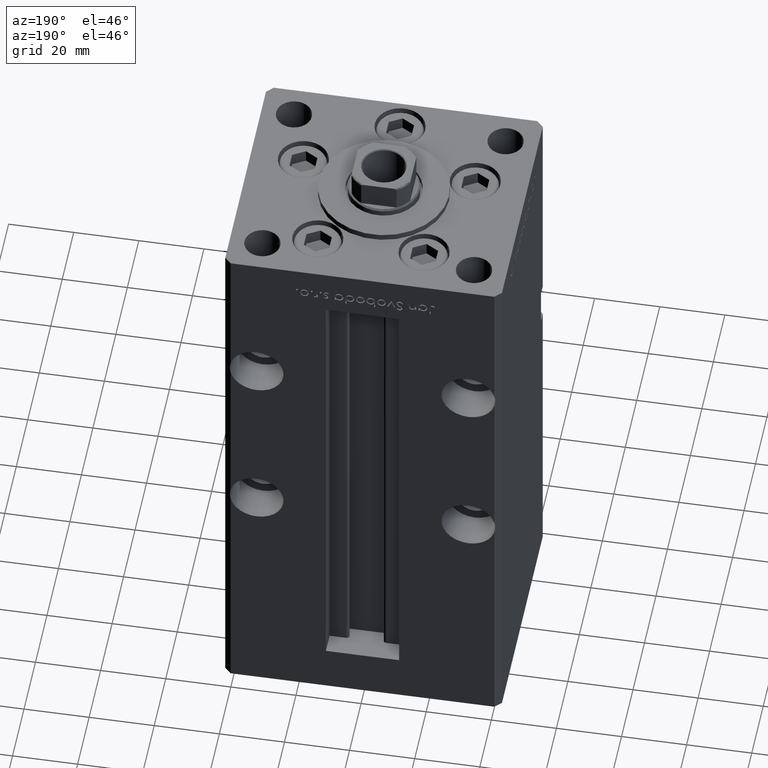
[diagram: clean part render]
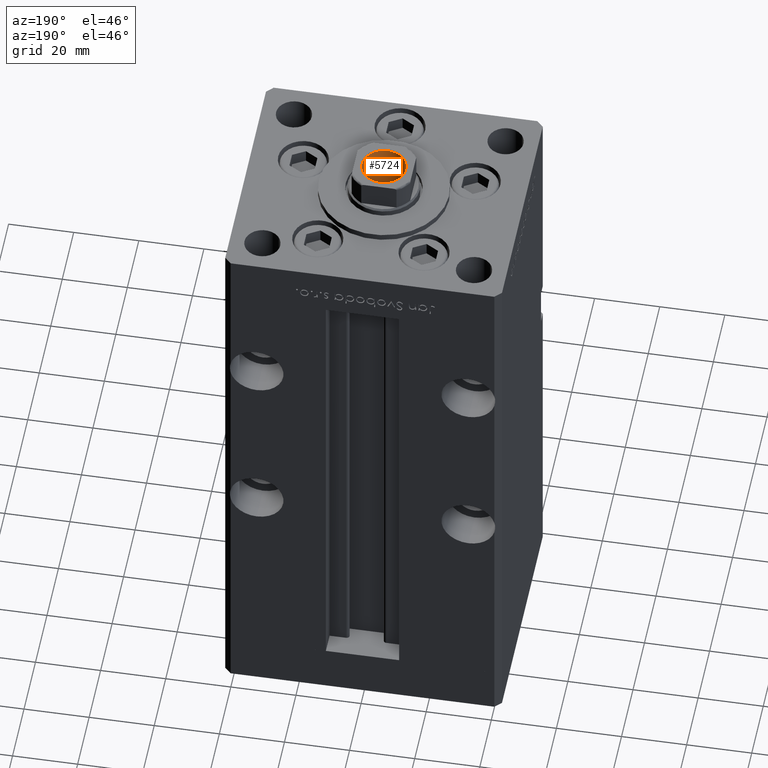
[diagram: same view with one face highlighted and labeled with its STEP entity id]
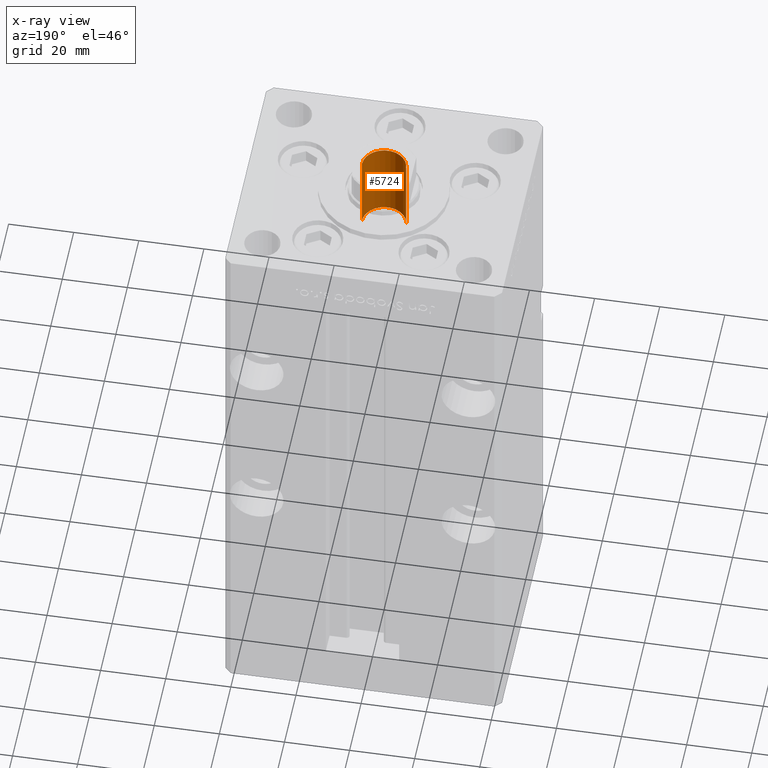
[diagram: x-ray of the same camera — body ghosted, the highlighted face saturated]
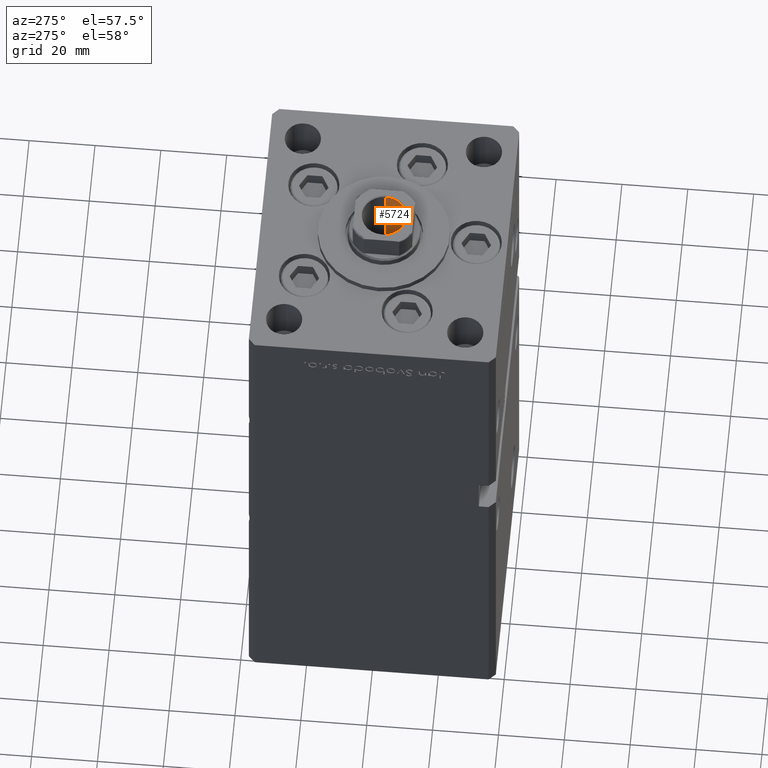
[diagram: same view with one face highlighted and labeled with its STEP entity id]
A machine part, auxiliary view. The second image highlights one B-rep face of the part: STEP entity #5724.
The next image is the same camera in x-ray: the body ghosted, the highlighted face saturated — about 0% of this face is hidden behind the body in this view.
A second angle (auxiliary view) of the same face is appended — the face is thin or edge-on in the first view.
In plain terms, the highlighted cylindrical surface (edge-blend (fillet) strip) has radius 6.75 mm, axis along (0, 0, 1).
Its self-contained STEP definition (entity closure, byte-faithful):
#108 = CARTESIAN_POINT ( 'NONE',  ( 6.749999999999995559, 0.000000000000000000, 155.7500000000000000 ) ) ;
#1410 = VECTOR ( 'NONE', #8171, 1000.000000000000000 ) ;
#4878 = DIRECTION ( 'NONE',  ( -0.000000000000000000, -0.000000000000000000, 1.000000000000000000 ) ) ;
#4901 = DIRECTION ( 'NONE',  ( 1.000000000000000000, 0.000000000000000000, 0.000000000000000000 ) ) ;
#5320 = CIRCLE ( 'NONE', #48295, 6.749999999999995559 ) ;
#5724 = ADVANCED_FACE ( 'NONE', ( #26120 ), #18040, .F. ) ;
#7783 = EDGE_CURVE ( 'NONE', #26233, #46798, #17650, .T. ) ;
#8171 = DIRECTION ( 'NONE',  ( -0.000000000000000000, -0.000000000000000000, 1.000000000000000000 ) ) ;
#9322 = VECTOR ( 'NONE', #17574, 1000.000000000000000 ) ;
#9667 = VERTEX_POINT ( 'NONE', #35859 ) ;
#16768 = LINE ( 'NONE', #108, #1410 ) ;
#17472 = EDGE_CURVE ( 'NONE', #26233, #9667, #49886, .T. ) ;
#17574 = DIRECTION ( 'NONE',  ( -0.000000000000000000, -0.000000000000000000, 1.000000000000000000 ) ) ;
#17650 = CIRCLE ( 'NONE', #43411, 6.749999999999993783 ) ;
#18040 = CYLINDRICAL_SURFACE ( 'NONE', #36503, 6.749999999999995559 ) ;
#23460 = CARTESIAN_POINT ( 'NONE',  ( 0.000000000000000000, 0.000000000000000000, 155.4499999999999886 ) ) ;
#23965 = CARTESIAN_POINT ( 'NONE',  ( 6.749999999999995559, 0.000000000000000000, 155.4499999999999886 ) ) ;
#26095 = ORIENTED_EDGE ( 'NONE', *, *, #7783, .F. ) ;
#26120 = FACE_OUTER_BOUND ( 'NONE', #49809, .T. ) ;
#26233 = VERTEX_POINT ( 'NONE', #51213 ) ;
#26555 = VERTEX_POINT ( 'NONE', #23965 ) ;
#30410 = DIRECTION ( 'NONE',  ( 1.000000000000000000, 0.000000000000000000, 0.000000000000000000 ) ) ;
#34201 = CARTESIAN_POINT ( 'NONE',  ( 0.000000000000000000, 0.000000000000000000, 130.7500000000000000 ) ) ;
#34546 = EDGE_CURVE ( 'NONE', #9667, #26555, #5320, .T. ) ;
#35545 = DIRECTION ( 'NONE',  ( 0.000000000000000000, 0.000000000000000000, 1.000000000000000000 ) ) ;
#35859 = CARTESIAN_POINT ( 'NONE',  ( -6.749999999999995559, 8.266365894244628417E-16, 155.4499999999999886 ) ) ;
#36503 = AXIS2_PLACEMENT_3D ( 'NONE', #50862, #4878, #30410 ) ;
#37486 = CARTESIAN_POINT ( 'NONE',  ( -6.749999999999995559, 8.266365894244628417E-16, 155.7500000000000000 ) ) ;
#40882 = ORIENTED_EDGE ( 'NONE', *, *, #17472, .T. ) ;
#43411 = AXIS2_PLACEMENT_3D ( 'NONE', #34201, #50627, #4901 ) ;
#45806 = EDGE_CURVE ( 'NONE', #46798, #26555, #16768, .T. ) ;
#46218 = CARTESIAN_POINT ( 'NONE',  ( 6.749999999999993783, 0.000000000000000000, 130.7500000000000000 ) ) ;
#46798 = VERTEX_POINT ( 'NONE', #46218 ) ;
#47147 = DIRECTION ( 'NONE',  ( 1.000000000000000000, 0.000000000000000000, 0.000000000000000000 ) ) ;
#48192 = ORIENTED_EDGE ( 'NONE', *, *, #34546, .T. ) ;
#48295 = AXIS2_PLACEMENT_3D ( 'NONE', #23460, #35545, #47147 ) ;
#49809 = EDGE_LOOP ( 'NONE', ( #26095, #40882, #48192, #51622 ) ) ;
#49886 = LINE ( 'NONE', #37486, #9322 ) ;
#50627 = DIRECTION ( 'NONE',  ( -0.000000000000000000, -0.000000000000000000, 1.000000000000000000 ) ) ;
#50862 = CARTESIAN_POINT ( 'NONE',  ( 0.000000000000000000, 0.000000000000000000, 155.7500000000000000 ) ) ;
#51213 = CARTESIAN_POINT ( 'NONE',  ( -6.749999999999993783, 8.266365894244626445E-16, 130.7500000000000000 ) ) ;
#51622 = ORIENTED_EDGE ( 'NONE', *, *, #45806, .F. ) ;